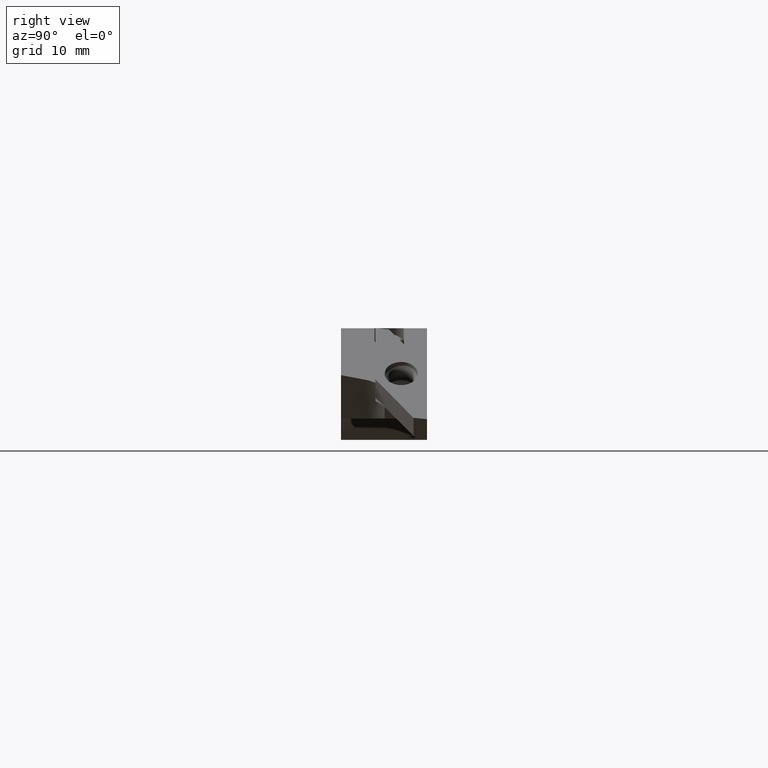
[diagram: clean part render]
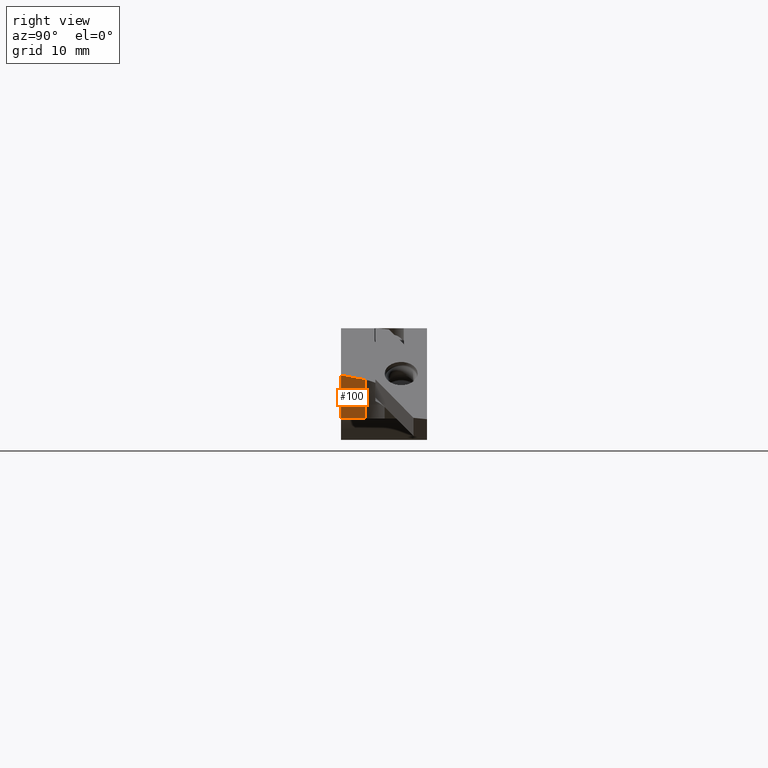
[diagram: same view with one face highlighted and labeled with its STEP entity id]
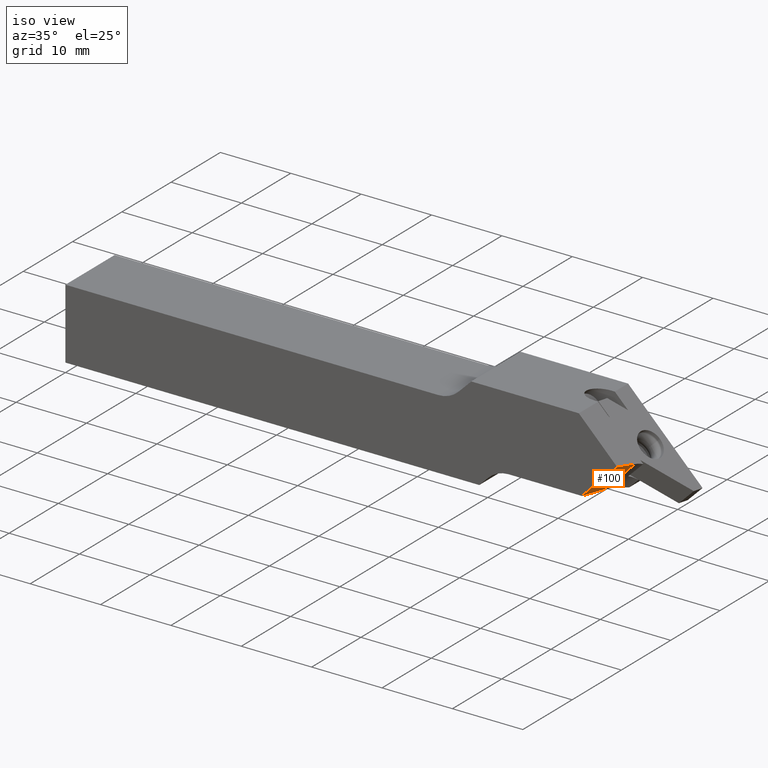
[diagram: same view with one face highlighted and labeled with its STEP entity id]
A machine part, right view. The second image highlights one B-rep face of the part: STEP entity #100.
A second angle (iso view) of the same face is appended — the face is thin or edge-on in the first view.
In plain terms, the highlighted planar face has unit normal (0.683, -0.2588, -0.683).
Its self-contained STEP definition (entity closure, byte-faithful):
#47 = DIRECTION ( 'NONE',  ( 0.1830127018922211857, 0.9659258262890675351, -0.1830127018922205751 ) ) ;
#100 = ADVANCED_FACE ( 'NONE', ( #178 ), #1115, .T. ) ;
#151 = LINE ( 'NONE', #886, #496 ) ;
#178 = FACE_OUTER_BOUND ( 'NONE', #180, .T. ) ;
#180 = EDGE_LOOP ( 'NONE', ( #492, #1139, #782, #1055 ) ) ;
#245 = VERTEX_POINT ( 'NONE', #759 ) ;
#247 = DIRECTION ( 'NONE',  ( -0.7071067811865465735, 0.000000000000000000, -0.7071067811865485719 ) ) ;
#265 = EDGE_CURVE ( 'NONE', #1040, #245, #151, .T. ) ;
#285 = CARTESIAN_POINT ( 'NONE',  ( 151.1393160477177844, 2.881239165103493871, 79.17350811418343426 ) ) ;
#322 = VECTOR ( 'NONE', #47, 1000.000000000000227 ) ;
#410 = LINE ( 'NONE', #949, #960 ) ;
#442 = VERTEX_POINT ( 'NONE', #708 ) ;
#492 = ORIENTED_EDGE ( 'NONE', *, *, #1283, .F. ) ;
#493 = CARTESIAN_POINT ( 'NONE',  ( 78.95790396676729017, 2.881239165103496536, 6.992096033232716223 ) ) ;
#496 = VECTOR ( 'NONE', #247, 1000.000000000000000 ) ;
#647 = LINE ( 'NONE', #1262, #322 ) ;
#708 = CARTESIAN_POINT ( 'NONE',  ( 74.46580793353457750, 2.881239165103495647, 2.499999999999980460 ) ) ;
#737 = CARTESIAN_POINT ( 'NONE',  ( 151.1393160477177844, 2.881239165103491651, 79.17350811418344847 ) ) ;
#759 = CARTESIAN_POINT ( 'NONE',  ( 73.37399870750100206, 9.901893260042758886E-17, 2.499999999999974243 ) ) ;
#764 = VECTOR ( 'NONE', #1041, 1000.000000000000000 ) ;
#770 = VERTEX_POINT ( 'NONE', #493 ) ;
#782 = ORIENTED_EDGE ( 'NONE', *, *, #1142, .F. ) ;
#886 = CARTESIAN_POINT ( 'NONE',  ( 66.13699935375048256, 0.000000000000000000, -4.736999353750487529 ) ) ;
#908 = DIRECTION ( 'NONE',  ( 0.6830127018922198534, -0.2588190451025229599, -0.6830127018922179660 ) ) ;
#924 = EDGE_CURVE ( 'NONE', #770, #442, #1246, .T. ) ;
#927 = DIRECTION ( 'NONE',  ( -0.3543493200069173787, -0.9351131265310285157, 0.000000000000000000 ) ) ;
#949 = CARTESIAN_POINT ( 'NONE',  ( 75.38497074227562678, 5.306871611233535901, 2.499999999999986677 ) ) ;
#960 = VECTOR ( 'NONE', #927, 1000.000000000000227 ) ;
#1040 = VERTEX_POINT ( 'NONE', #1056 ) ;
#1041 = DIRECTION ( 'NONE',  ( -0.7071067811865464625, 0.000000000000000000, -0.7071067811865486830 ) ) ;
#1055 = ORIENTED_EDGE ( 'NONE', *, *, #924, .F. ) ;
#1056 = CARTESIAN_POINT ( 'NONE',  ( 78.41199935375051666, 9.901893260042758886E-17, 7.538000646249515491 ) ) ;
#1115 = PLANE ( 'NONE',  #1269 ) ;
#1139 = ORIENTED_EDGE ( 'NONE', *, *, #265, .T. ) ;
#1142 = EDGE_CURVE ( 'NONE', #442, #245, #410, .T. ) ;
#1246 = LINE ( 'NONE', #285, #764 ) ;
#1262 = CARTESIAN_POINT ( 'NONE',  ( 80.28614217940251763, 9.891570031668019070, 5.663857820597484327 ) ) ;
#1269 = AXIS2_PLACEMENT_3D ( 'NONE', #737, #908, #1320 ) ;
#1283 = EDGE_CURVE ( 'NONE', #1040, #770, #647, .T. ) ;
#1320 = DIRECTION ( 'NONE',  ( -0.7071067811865465735, 0.000000000000000000, -0.7071067811865485719 ) ) ;